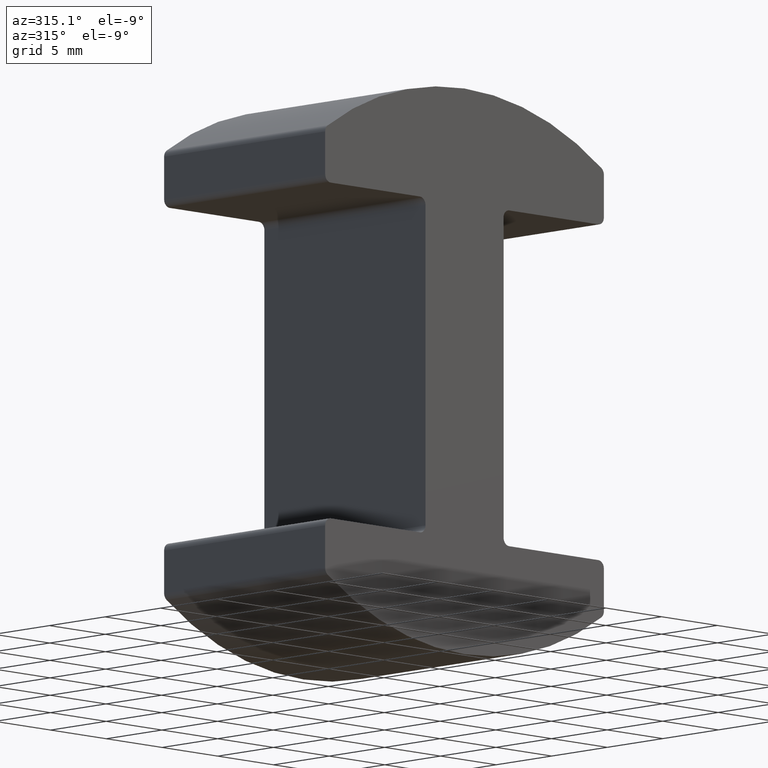
[diagram: clean part render]
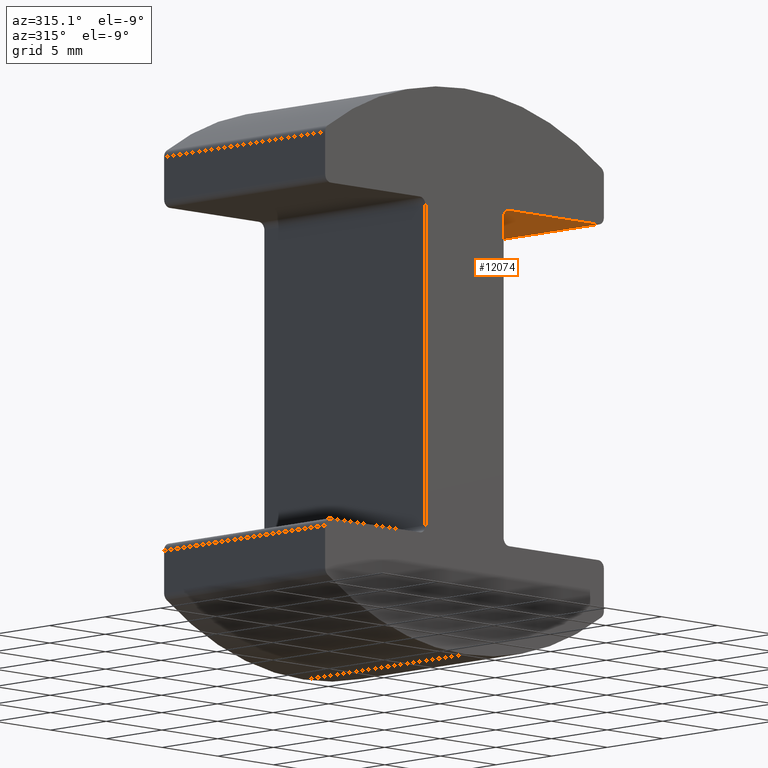
[diagram: same view with one face highlighted and labeled with its STEP entity id]
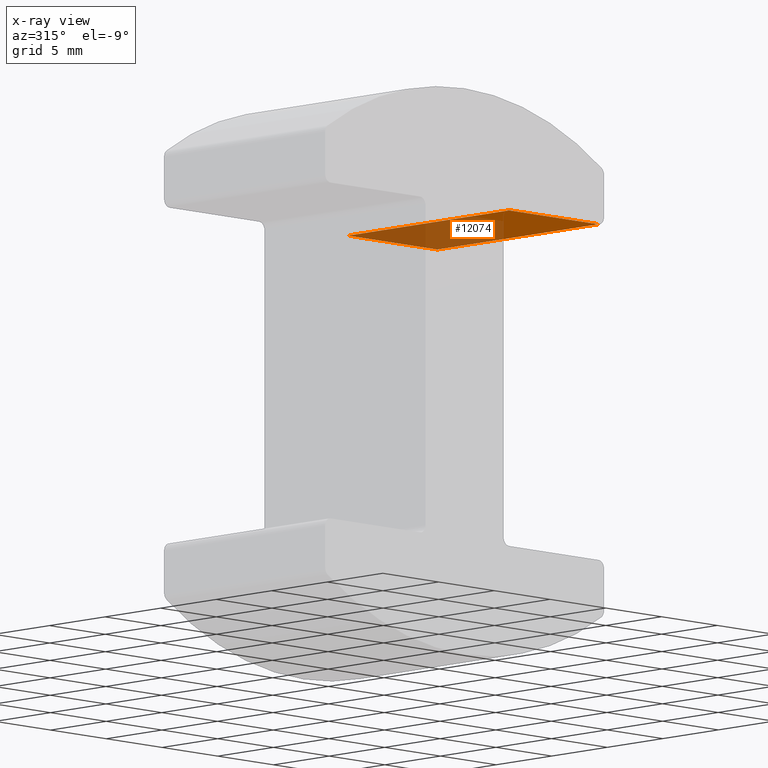
[diagram: x-ray of the same camera — body ghosted, the highlighted face saturated]
A machine part, auxiliary view. The second image highlights one B-rep face of the part: STEP entity #12074.
The next image is the same camera in x-ray: the body ghosted, the highlighted face saturated — about 65% of this face is hidden behind the body in this view.
In plain terms, the highlighted planar face has unit normal (-0, 0, -1).
Its self-contained STEP definition (entity closure, byte-faithful):
#142 = DIRECTION ( 'NONE',  ( -1.000000000000000000, 0.0000000000000000000, 3.854941057726238100E-016 ) ) ;
#313 = AXIS2_PLACEMENT_3D ( 'NONE', #8180, #10224, #142 ) ;
#730 = VECTOR ( 'NONE', #10922, 1000.000000000000000 ) ;
#750 = VERTEX_POINT ( 'NONE', #2257 ) ;
#909 = CARTESIAN_POINT ( 'NONE',  ( 3.500000000000000400, 7.250000000000000000, 10.80000000000000400 ) ) ;
#1074 = CARTESIAN_POINT ( 'NONE',  ( 12.00000000000000000, 7.250000000000000000, 10.80000000000000100 ) ) ;
#1140 = ORIENTED_EDGE ( 'NONE', *, *, #10601, .T. ) ;
#1767 = CARTESIAN_POINT ( 'NONE',  ( 12.00000000000000000, -7.250000000000000000, 10.80000000000000100 ) ) ;
#1820 = LINE ( 'NONE', #909, #12587 ) ;
#1861 = VERTEX_POINT ( 'NONE', #1767 ) ;
#2257 = CARTESIAN_POINT ( 'NONE',  ( 4.000000000000000900, -7.250000000000000000, 10.80000000000000400 ) ) ;
#2930 = EDGE_CURVE ( 'NONE', #750, #1861, #3414, .T. ) ;
#2950 = LINE ( 'NONE', #9609, #6570 ) ;
#3116 = VECTOR ( 'NONE', #11942, 1000.000000000000000 ) ;
#3414 = LINE ( 'NONE', #12954, #3116 ) ;
#3528 = DIRECTION ( 'NONE',  ( 0.0000000000000000000, -1.000000000000000000, 0.0000000000000000000 ) ) ;
#3878 = EDGE_LOOP ( 'NONE', ( #10801, #9706, #9108, #1140 ) ) ;
#4624 = EDGE_CURVE ( 'NONE', #750, #7784, #11828, .T. ) ;
#5154 = CARTESIAN_POINT ( 'NONE',  ( 4.000000000000000900, 7.250000000000000000, 10.80000000000000400 ) ) ;
#6570 = VECTOR ( 'NONE', #3528, 1000.000000000000000 ) ;
#7185 = FACE_OUTER_BOUND ( 'NONE', #3878, .T. ) ;
#7784 = VERTEX_POINT ( 'NONE', #5154 ) ;
#8180 = CARTESIAN_POINT ( 'NONE',  ( 3.500000000000000400, 7.250000000000000000, 10.80000000000000400 ) ) ;
#9108 = ORIENTED_EDGE ( 'NONE', *, *, #11359, .T. ) ;
#9609 = CARTESIAN_POINT ( 'NONE',  ( 12.00000000000000000, 7.250000000000000000, 10.80000000000000100 ) ) ;
#9706 = ORIENTED_EDGE ( 'NONE', *, *, #4624, .T. ) ;
#10224 = DIRECTION ( 'NONE',  ( -3.854941057726238100E-016, 0.0000000000000000000, -1.000000000000000000 ) ) ;
#10601 = EDGE_CURVE ( 'NONE', #12079, #1861, #2950, .T. ) ;
#10801 = ORIENTED_EDGE ( 'NONE', *, *, #2930, .F. ) ;
#10922 = DIRECTION ( 'NONE',  ( -0.0000000000000000000, 1.000000000000000000, -0.0000000000000000000 ) ) ;
#10966 = DIRECTION ( 'NONE',  ( 1.000000000000000000, 0.0000000000000000000, -3.854941057726237600E-016 ) ) ;
#11226 = PLANE ( 'NONE',  #313 ) ;
#11359 = EDGE_CURVE ( 'NONE', #7784, #12079, #1820, .T. ) ;
#11828 = LINE ( 'NONE', #13075, #730 ) ;
#11942 = DIRECTION ( 'NONE',  ( 1.000000000000000000, 0.0000000000000000000, -3.854941057726237600E-016 ) ) ;
#12074 = ADVANCED_FACE ( 'NONE', ( #7185 ), #11226, .T. ) ;
#12079 = VERTEX_POINT ( 'NONE', #1074 ) ;
#12587 = VECTOR ( 'NONE', #10966, 1000.000000000000000 ) ;
#12954 = CARTESIAN_POINT ( 'NONE',  ( 3.500000000000000400, -7.250000000000000000, 10.80000000000000400 ) ) ;
#13075 = CARTESIAN_POINT ( 'NONE',  ( 4.000000000000000900, 7.250000000000000000, 10.80000000000000400 ) ) ;